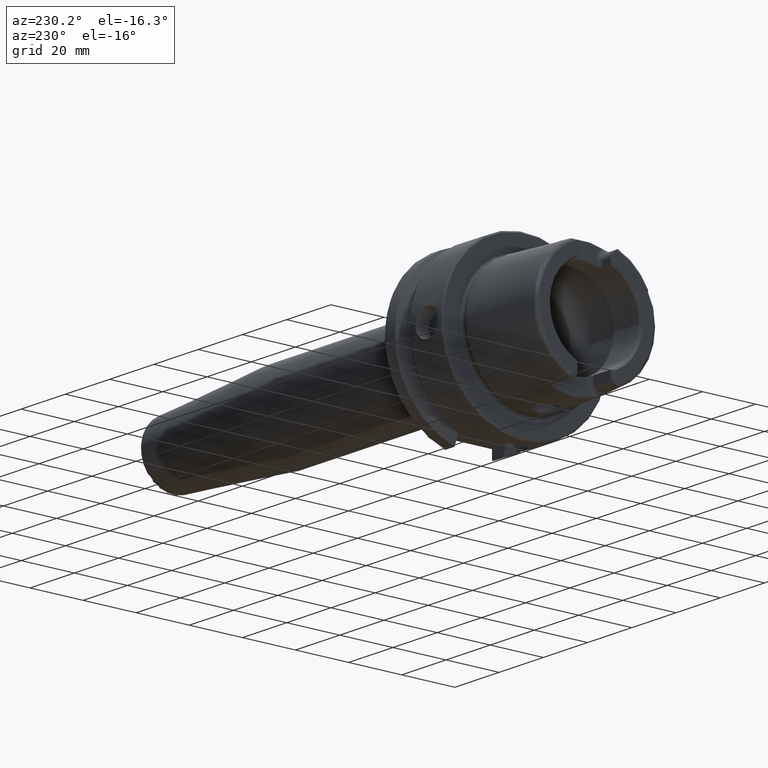
[diagram: clean part render]
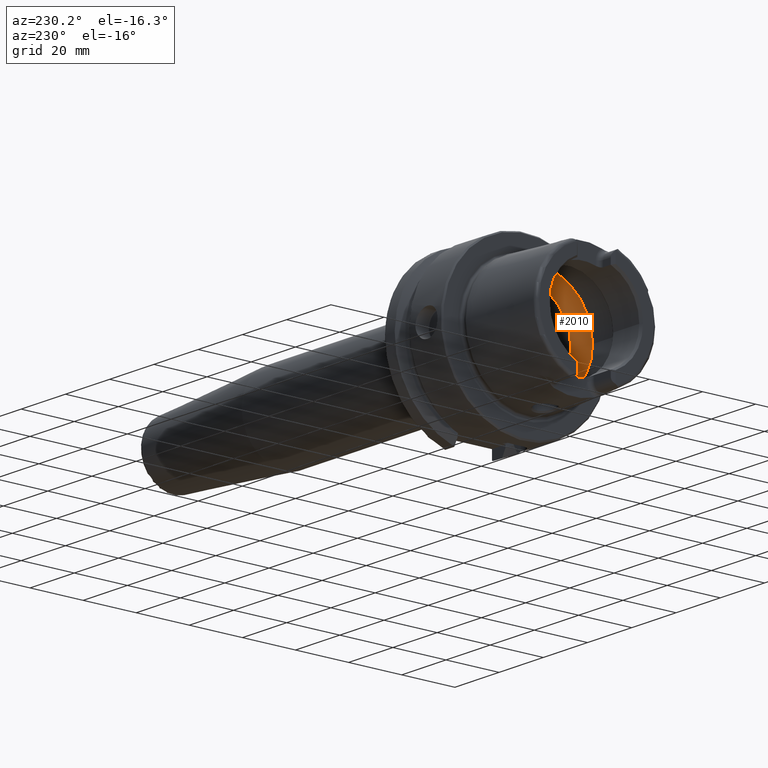
[diagram: same view with one face highlighted and labeled with its STEP entity id]
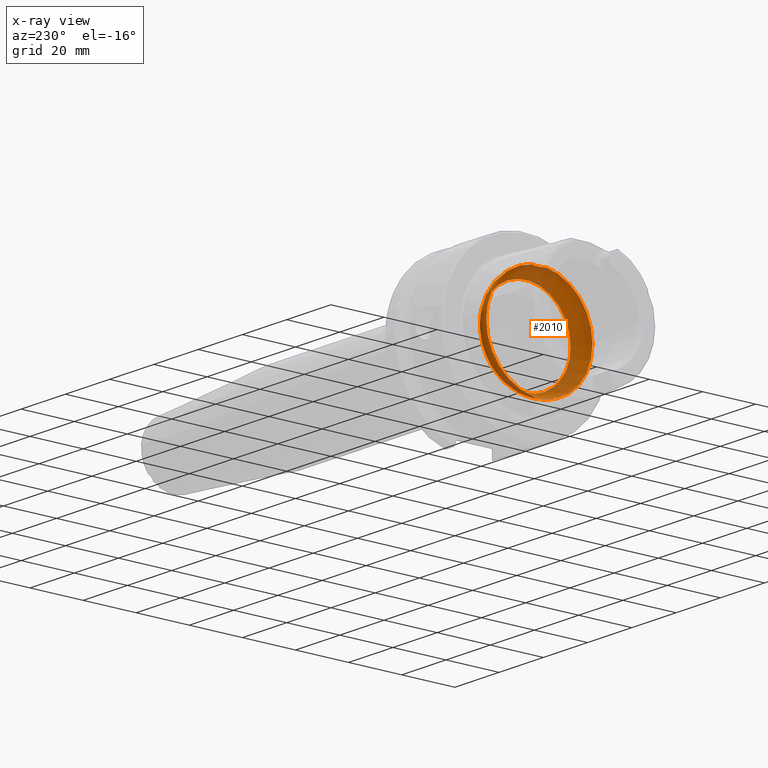
[diagram: x-ray of the same camera — body ghosted, the highlighted face saturated]
A machine part, auxiliary view. The second image highlights one B-rep face of the part: STEP entity #2010.
The next image is the same camera in x-ray: the body ghosted, the highlighted face saturated — about 26% of this face is hidden behind the body in this view.
In plain terms, the highlighted toroidal blend (fillet) surface has major radius 12 mm and minor (blend) radius 8 mm.
Its self-contained STEP definition (entity closure, byte-faithful):
#49=B_SPLINE_CURVE_WITH_KNOTS('',3,(#3540,#3541,#3542,#3543,#3544,#3545,
#3546,#3547,#3548,#3549,#3550,#3551),.UNSPECIFIED.,.F.,.F.,(4,2,2,2,2,4),
(-0.560647090003115,-0.432465132423936,-0.371738630353782,-0.32053783623797,
-0.287500355516274,-0.280385270121909),.UNSPECIFIED.);
#51=B_SPLINE_CURVE_WITH_KNOTS('',3,(#3584,#3585,#3586,#3587,#3588,#3589,
#3590,#3591,#3592,#3593),.UNSPECIFIED.,.F.,.F.,(4,2,2,2,4),(-0.280385270121909,
-0.256917987419631,-0.21744735037608,-0.138661357565599,0.),
 .UNSPECIFIED.);
#54=B_SPLINE_CURVE_WITH_KNOTS('',3,(#3709,#3710,#3711,#3712,#3713,#3714,
#3715,#3716,#3717,#3718,#3719,#3720),.UNSPECIFIED.,.F.,.F.,(4,2,2,2,2,4),
(-0.560647090003256,-0.432465132424011,-0.371738630353825,-0.32053783623799,
-0.287500355516289,-0.280385270121924),.UNSPECIFIED.);
#56=B_SPLINE_CURVE_WITH_KNOTS('',3,(#3753,#3754,#3755,#3756,#3757,#3758,
#3759,#3760,#3761,#3762),.UNSPECIFIED.,.F.,.F.,(4,2,2,2,4),(-0.280385270121924,
-0.256917987419636,-0.217447350376074,-0.138661357565593,0.),
 .UNSPECIFIED.);
#147=TOROIDAL_SURFACE('',#2204,12.,8.);
#247=FACE_OUTER_BOUND('',#374,.T.);
#374=EDGE_LOOP('',(#1515,#1516,#1517,#1518,#1519,#1520,#1521,#1522,#1523,
#1524,#1525));
#719=CIRCLE('',#2199,20.);
#722=CIRCLE('',#2202,20.);
#723=CIRCLE('',#2203,20.);
#724=CIRCLE('',#2205,17.);
#725=CIRCLE('',#2206,17.);
#726=CIRCLE('',#2207,8.);
#892=VERTEX_POINT('',#3537);
#893=VERTEX_POINT('',#3539);
#894=VERTEX_POINT('',#3552);
#897=VERTEX_POINT('',#3707);
#898=VERTEX_POINT('',#3708);
#899=VERTEX_POINT('',#3721);
#900=VERTEX_POINT('',#3765);
#903=VERTEX_POINT('',#3775);
#904=VERTEX_POINT('',#3776);
#1123=EDGE_CURVE('',#893,#892,#49,.T.);
#1125=EDGE_CURVE('',#892,#894,#51,.T.);
#1129=EDGE_CURVE('',#897,#898,#54,.T.);
#1131=EDGE_CURVE('',#898,#899,#56,.T.);
#1133=EDGE_CURVE('',#900,#897,#719,.T.);
#1137=EDGE_CURVE('',#894,#900,#722,.T.);
#1138=EDGE_CURVE('',#899,#893,#723,.T.);
#1139=EDGE_CURVE('',#903,#904,#724,.T.);
#1140=EDGE_CURVE('',#904,#903,#725,.T.);
#1141=EDGE_CURVE('',#904,#892,#726,.T.);
#1515=ORIENTED_EDGE('',*,*,#1139,.F.);
#1516=ORIENTED_EDGE('',*,*,#1140,.F.);
#1517=ORIENTED_EDGE('',*,*,#1141,.T.);
#1518=ORIENTED_EDGE('',*,*,#1125,.T.);
#1519=ORIENTED_EDGE('',*,*,#1137,.T.);
#1520=ORIENTED_EDGE('',*,*,#1133,.T.);
#1521=ORIENTED_EDGE('',*,*,#1129,.T.);
#1522=ORIENTED_EDGE('',*,*,#1131,.T.);
#1523=ORIENTED_EDGE('',*,*,#1138,.T.);
#1524=ORIENTED_EDGE('',*,*,#1123,.T.);
#1525=ORIENTED_EDGE('',*,*,#1141,.F.);
#2010=ADVANCED_FACE('',(#247),#147,.F.);
#2199=AXIS2_PLACEMENT_3D('',#3766,#2579,#2580);
#2202=AXIS2_PLACEMENT_3D('',#3772,#2586,#2587);
#2203=AXIS2_PLACEMENT_3D('',#3773,#2588,#2589);
#2204=AXIS2_PLACEMENT_3D('',#3774,#2590,#2591);
#2205=AXIS2_PLACEMENT_3D('',#3777,#2592,#2593);
#2206=AXIS2_PLACEMENT_3D('',#3778,#2594,#2595);
#2207=AXIS2_PLACEMENT_3D('',#3779,#2596,#2597);
#2579=DIRECTION('center_axis',(-1.,0.,0.));
#2580=DIRECTION('ref_axis',(0.,0.,1.));
#2586=DIRECTION('center_axis',(-1.,0.,0.));
#2587=DIRECTION('ref_axis',(0.,0.,1.));
#2588=DIRECTION('center_axis',(-1.,0.,0.));
#2589=DIRECTION('ref_axis',(0.,0.,1.));
#2590=DIRECTION('center_axis',(-1.,0.,0.));
#2591=DIRECTION('ref_axis',(0.,0.,1.));
#2592=DIRECTION('center_axis',(-1.,0.,0.));
#2593=DIRECTION('ref_axis',(0.,0.,1.));
#2594=DIRECTION('center_axis',(-1.,0.,0.));
#2595=DIRECTION('ref_axis',(0.,0.,1.));
#2596=DIRECTION('center_axis',(0.,1.,-1.22464679914735E-16));
#2597=DIRECTION('ref_axis',(0.,-1.22464679914735E-16,-1.));
#3537=CARTESIAN_POINT('',(-5.25,3.07683831259085E-16,-19.9378825251564));
#3539=CARTESIAN_POINT('',(-6.2449979983984,2.54410376580264,-19.8375284758165));
#3540=CARTESIAN_POINT('Ctrl Pts',(-6.2449979983984,2.54410376580263,-19.8375284758165));
#3541=CARTESIAN_POINT('Ctrl Pts',(-5.9563832733696,2.23156378381208,-19.877610794847));
#3542=CARTESIAN_POINT('Ctrl Pts',(-5.72238184052007,1.87139505615745,-19.9007586679726));
#3543=CARTESIAN_POINT('Ctrl Pts',(-5.47415257397377,1.29299577523533,-19.9221291461079));
#3544=CARTESIAN_POINT('Ctrl Pts',(-5.40951125063364,1.10084807786171,-19.9269865934584));
#3545=CARTESIAN_POINT('Ctrl Pts',(-5.31953029252225,0.738763665580492,-19.9333991732415));
#3546=CARTESIAN_POINT('Ctrl Pts',(-5.28971989928313,0.57048989328573,-19.9353426103026));
#3547=CARTESIAN_POINT('Ctrl Pts',(-5.25970604483208,0.291260075331645,-19.9372753146995));
#3548=CARTESIAN_POINT('Ctrl Pts',(-5.25276504295341,0.181279004510485,-19.9377089305339));
#3549=CARTESIAN_POINT('Ctrl Pts',(-5.25022501552319,0.0474369436209427,
-19.9378684144199));
#3550=CARTESIAN_POINT('Ctrl Pts',(-5.25,0.0237178817918345,-19.9378825251564));
#3551=CARTESIAN_POINT('Ctrl Pts',(-5.25,1.73633857888389E-16,-19.9378825251564));
#3552=CARTESIAN_POINT('',(-6.2449979983984,-2.54410376580264,-19.8375284758165));
#3584=CARTESIAN_POINT('Ctrl Pts',(-5.25,1.73633857888389E-16,-19.9378825251564));
#3585=CARTESIAN_POINT('Ctrl Pts',(-5.25,-0.0782273446147222,-19.9378825251564));
#3586=CARTESIAN_POINT('Ctrl Pts',(-5.25244785081342,-0.15644185230388,-19.9377296492436));
#3587=CARTESIAN_POINT('Ctrl Pts',(-5.26557067654327,-0.365860616871457,
-19.9368989370107));
#3588=CARTESIAN_POINT('Ctrl Pts',(-5.2807081654794,-0.496671474530444,-19.9359382432917));
#3589=CARTESIAN_POINT('Ctrl Pts',(-5.34656166936447,-0.885366242555149,
-19.9315392091305));
#3590=CARTESIAN_POINT('Ctrl Pts',(-5.41752174824152,-1.13897710923821,-19.9266508951874));
#3591=CARTESIAN_POINT('Ctrl Pts',(-5.68473945553282,-1.81246400136134,-19.9044561094296));
#3592=CARTESIAN_POINT('Ctrl Pts',(-5.93280828188796,-2.20603449935731,-19.880884849314));
#3593=CARTESIAN_POINT('Ctrl Pts',(-6.2449979983984,-2.54410376580263,-19.8375284758165));
#3707=CARTESIAN_POINT('',(-6.2449979983984,-2.54410376580264,19.8375284758165));
#3708=CARTESIAN_POINT('',(-5.25,4.81156178856766E-16,19.9378825251564));
#3709=CARTESIAN_POINT('Ctrl Pts',(-6.2449979983984,-2.54410376580264,19.8375284758165));
#3710=CARTESIAN_POINT('Ctrl Pts',(-5.9563832733696,-2.23156378381209,19.877610794847));
#3711=CARTESIAN_POINT('Ctrl Pts',(-5.72238184052007,-1.87139505615746,19.9007586679726));
#3712=CARTESIAN_POINT('Ctrl Pts',(-5.47415257397376,-1.29299577523533,19.9221291461079));
#3713=CARTESIAN_POINT('Ctrl Pts',(-5.40951125063363,-1.10084807786172,19.9269865934584));
#3714=CARTESIAN_POINT('Ctrl Pts',(-5.31953029252225,-0.738763665580501,
19.9333991732415));
#3715=CARTESIAN_POINT('Ctrl Pts',(-5.28971989928313,-0.570489893285745,
19.9353426103026));
#3716=CARTESIAN_POINT('Ctrl Pts',(-5.25970604483207,-0.291260075331669,
19.9372753146995));
#3717=CARTESIAN_POINT('Ctrl Pts',(-5.2527650429534,-0.181279004510531,19.9377089305339));
#3718=CARTESIAN_POINT('Ctrl Pts',(-5.25022501552319,-0.0474369436209401,
19.9378684144199));
#3719=CARTESIAN_POINT('Ctrl Pts',(-5.25,-0.0237178817918311,19.9378825251564));
#3720=CARTESIAN_POINT('Ctrl Pts',(-5.25,5.15920899939407E-16,19.9378825251564));
#3721=CARTESIAN_POINT('',(-6.2449979983984,2.54410376580264,19.8375284758165));
#3753=CARTESIAN_POINT('Ctrl Pts',(-5.25,5.15920899939407E-16,19.9378825251564));
#3754=CARTESIAN_POINT('Ctrl Pts',(-5.25,0.0782273446147462,19.9378825251564));
#3755=CARTESIAN_POINT('Ctrl Pts',(-5.25244785081342,0.156441852303891,19.9377296492436));
#3756=CARTESIAN_POINT('Ctrl Pts',(-5.26557067654326,0.36586061687142,19.9368989370107));
#3757=CARTESIAN_POINT('Ctrl Pts',(-5.28070816547939,0.496671474530425,19.9359382432917));
#3758=CARTESIAN_POINT('Ctrl Pts',(-5.34656166936446,0.885366242555101,19.9315392091305));
#3759=CARTESIAN_POINT('Ctrl Pts',(-5.41752174824151,1.13897710923819,19.9266508951874));
#3760=CARTESIAN_POINT('Ctrl Pts',(-5.68473945553283,1.81246400136138,19.9044561094296));
#3761=CARTESIAN_POINT('Ctrl Pts',(-5.93280828188797,2.20603449935733,19.880884849314));
#3762=CARTESIAN_POINT('Ctrl Pts',(-6.2449979983984,2.54410376580264,19.8375284758165));
#3765=CARTESIAN_POINT('',(-6.2449979983984,-20.,2.44929359829471E-15));
#3766=CARTESIAN_POINT('Origin',(-6.2449979983984,0.,0.));
#3772=CARTESIAN_POINT('Origin',(-6.2449979983984,0.,0.));
#3773=CARTESIAN_POINT('Origin',(-6.2449979983984,0.,0.));
#3774=CARTESIAN_POINT('Origin',(-6.2449979983984,0.,0.));
#3775=CARTESIAN_POINT('',(0.,-17.,2.0818995585505E-15));
#3776=CARTESIAN_POINT('',(0.,-2.0818995585505E-15,-17.));
#3777=CARTESIAN_POINT('Origin',(0.,0.,0.));
#3778=CARTESIAN_POINT('Origin',(0.,0.,0.));
#3779=CARTESIAN_POINT('Origin',(-6.2449979983984,-1.46957615897682E-15,
-12.));